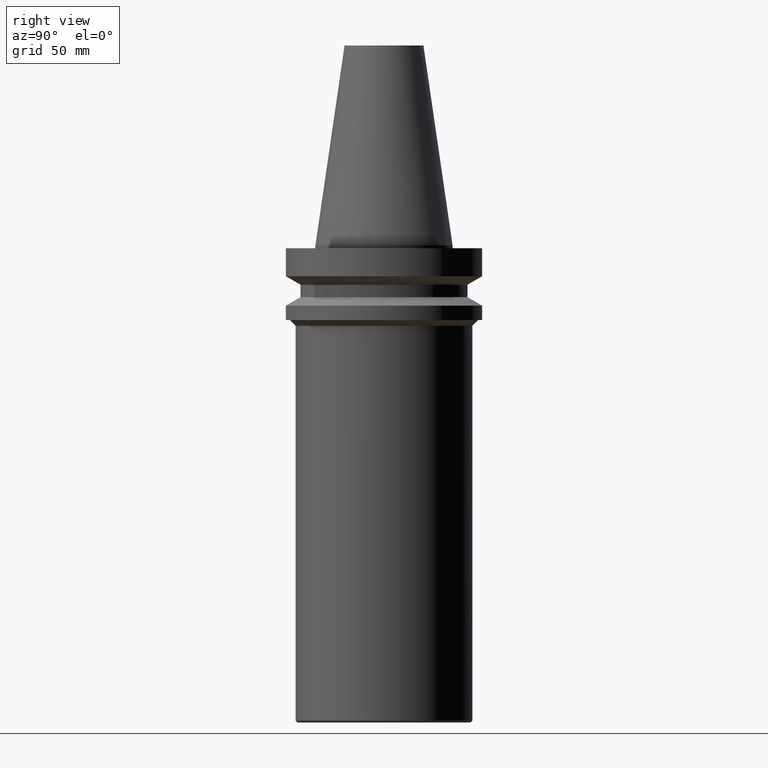
[diagram: clean part render]
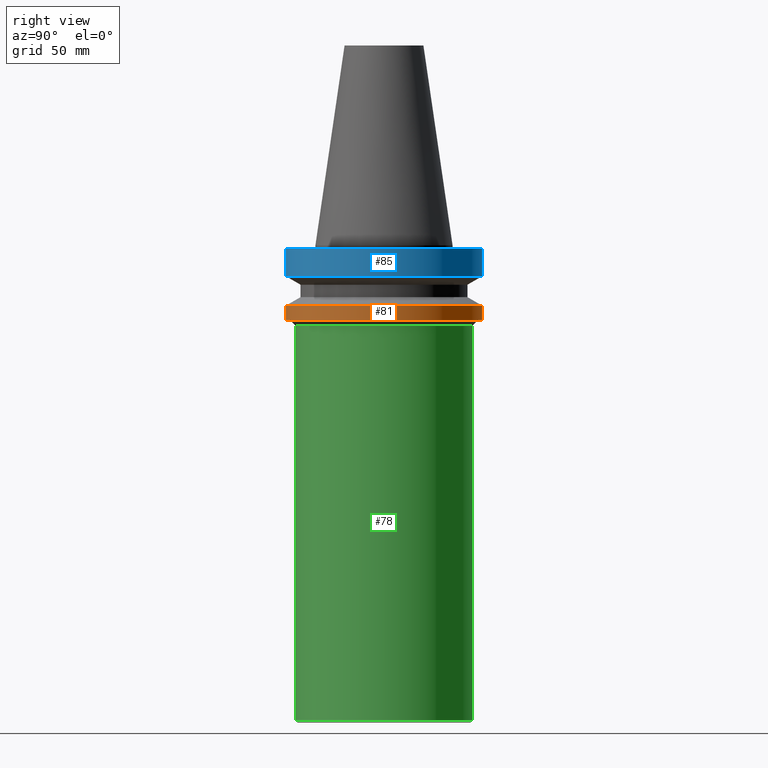
[diagram: same view with three faces highlighted in distinct colors, each labeled with its STEP entity id]
A machine part, right view with three faces highlighted in distinct colors.
Their STEP definitions:

[orange] entity #81 — the highlighted cylindrical surface (bore or boss wall) has radius 50 mm, axis along (0, 0, -1).
#81=ADVANCED_FACE('',(#106,#107),#108,.T.);
#106=FACE_BOUND('',#146,.T.);
#107=FACE_BOUND('',#147,.T.);
#108=CYLINDRICAL_SURFACE('',#148,50.0000000000005);
#146=EDGE_LOOP('',(#198));
#147=EDGE_LOOP('',(#199));
#148=AXIS2_PLACEMENT_3D('',#200,#201,#202);
#198=ORIENTED_EDGE('',*,*,#244,.F.);
#199=ORIENTED_EDGE('',*,*,#243,.T.);
#200=CARTESIAN_POINT('',(2.1033308775356E-015,4.20666175507119E-015,-34.3500000000003));
#201=DIRECTION('',(6.12323399573677E-017,1.22464679914735E-016,-1.0));
#202=DIRECTION('',(-1.23259516440783E-032,1.0,1.22464679914735E-016));
#243=EDGE_CURVE('',#261,#261,#262,.T.);
#244=EDGE_CURVE('',#263,#263,#264,.T.);
#261=VERTEX_POINT('',#287);
#262=CIRCLE('',#288,50.0000000000005);
#263=VERTEX_POINT('',#289);
#264=CIRCLE('',#290,50.0000000000005);
#287=CARTESIAN_POINT('',(2.32682891838001E-015,50.0000000000005,-38.0000000000006));
#288=AXIS2_PLACEMENT_3D('',#318,#319,#320);
#289=CARTESIAN_POINT('',(1.87983283669118E-015,50.0000000000005,-30.6999999999999));
#290=AXIS2_PLACEMENT_3D('',#321,#322,#323);
#318=CARTESIAN_POINT('',(2.32682891838001E-015,4.65365783676002E-015,-38.0000000000006));
#319=DIRECTION('',(-6.12323399573677E-017,-1.22464679914735E-016,1.0));
#320=DIRECTION('',(-1.23259516440783E-032,1.0,1.22464679914735E-016));
#321=CARTESIAN_POINT('',(1.87983283669118E-015,3.75966567338236E-015,-30.6999999999999));
#322=DIRECTION('',(-6.12323399573677E-017,-1.22464679914735E-016,1.0));
#323=DIRECTION('',(-1.23259516440783E-032,1.0,1.22464679914735E-016));

[blue] entity #85 — the highlighted cylindrical surface (bore or boss wall) has radius 50 mm, axis along (0, 0, -1).
#85=ADVANCED_FACE('',(#118,#119),#120,.T.);
#118=FACE_BOUND('',#158,.T.);
#119=FACE_BOUND('',#159,.T.);
#120=CYLINDRICAL_SURFACE('',#160,50.0000000000005);
#158=EDGE_LOOP('',(#218));
#159=EDGE_LOOP('',(#219));
#160=AXIS2_PLACEMENT_3D('',#220,#221,#222);
#218=ORIENTED_EDGE('',*,*,#248,.F.);
#219=ORIENTED_EDGE('',*,*,#247,.T.);
#220=CARTESIAN_POINT('',(5.26598123633504E-016,1.05319624726701E-015,-8.60000000000232));
#221=DIRECTION('',(6.12323399573677E-017,1.22464679914735E-016,-1.0));
#222=DIRECTION('',(-1.23259516440783E-032,1.0,1.22464679914735E-016));
#247=EDGE_CURVE('',#269,#269,#270,.T.);
#248=EDGE_CURVE('',#271,#271,#272,.T.);
#269=VERTEX_POINT('',#295);
#270=CIRCLE('',#296,50.0000000000005);
#271=VERTEX_POINT('',#297);
#272=CIRCLE('',#298,50.0000000000005);
#295=CARTESIAN_POINT('',(9.61347737330667E-016,50.0000000000005,-15.6999999999999));
#296=AXIS2_PLACEMENT_3D('',#330,#331,#332);
#297=CARTESIAN_POINT('',(9.18485099363398E-017,50.0000000000005,-1.50000000000471));
#298=AXIS2_PLACEMENT_3D('',#333,#334,#335);
#330=CARTESIAN_POINT('',(9.61347737330668E-016,1.92269547466134E-015,-15.6999999999999));
#331=DIRECTION('',(-6.12323399573677E-017,-1.22464679914735E-016,1.0));
#332=DIRECTION('',(-1.23259516440783E-032,1.0,1.22464679914735E-016));
#333=CARTESIAN_POINT('',(9.18485099363404E-017,1.83697019872681E-016,-1.50000000000472));
#334=DIRECTION('',(-6.12323399573677E-017,-1.22464679914735E-016,1.0));
#335=DIRECTION('',(-1.23259516440783E-032,1.0,1.22464679914735E-016));

[green] entity #78 — the highlighted cylindrical surface (bore or boss wall) has radius 45 mm, axis along (0, 0, -1).
#78=ADVANCED_FACE('',(#97,#98),#99,.T.);
#97=FACE_BOUND('',#137,.T.);
#98=FACE_BOUND('',#138,.T.);
#99=CYLINDRICAL_SURFACE('',#139,45.0);
#137=EDGE_LOOP('',(#183));
#138=EDGE_LOOP('',(#184));
#139=AXIS2_PLACEMENT_3D('',#185,#186,#187);
#183=ORIENTED_EDGE('',*,*,#241,.F.);
#184=ORIENTED_EDGE('',*,*,#240,.T.);
#185=CARTESIAN_POINT('',(8.66437610396756E-015,1.73287522079351E-014,-141.500000000001));
#186=DIRECTION('',(6.12323399573677E-017,1.22464679914735E-016,-1.0));
#187=DIRECTION('',(-1.23259516440783E-032,1.0,1.22464679914735E-016));
#240=EDGE_CURVE('',#255,#255,#256,.T.);
#241=EDGE_CURVE('',#257,#257,#258,.T.);
#255=VERTEX_POINT('',#281);
#256=CIRCLE('',#282,45.0);
#257=VERTEX_POINT('',#283);
#258=CIRCLE('',#284,45.0);
#281=CARTESIAN_POINT('',(1.4818226269683E-014,45.0,-242.000000000001));
#282=AXIS2_PLACEMENT_3D('',#309,#310,#311);
#283=CARTESIAN_POINT('',(2.51052593825211E-015,45.0,-41.0000000000006));
#284=AXIS2_PLACEMENT_3D('',#312,#313,#314);
#309=CARTESIAN_POINT('',(1.4818226269683E-014,2.9636452539366E-014,-242.000000000001));
#310=DIRECTION('',(-6.12323399573677E-017,-1.22464679914735E-016,1.0));
#311=DIRECTION('',(-1.23259516440783E-032,1.0,1.22464679914735E-016));
#312=CARTESIAN_POINT('',(2.51052593825211E-015,5.02105187650422E-015,-41.0000000000006));
#313=DIRECTION('',(-6.12323399573677E-017,-1.22464679914735E-016,1.0));
#314=DIRECTION('',(-1.23259516440783E-032,1.0,1.22464679914735E-016));